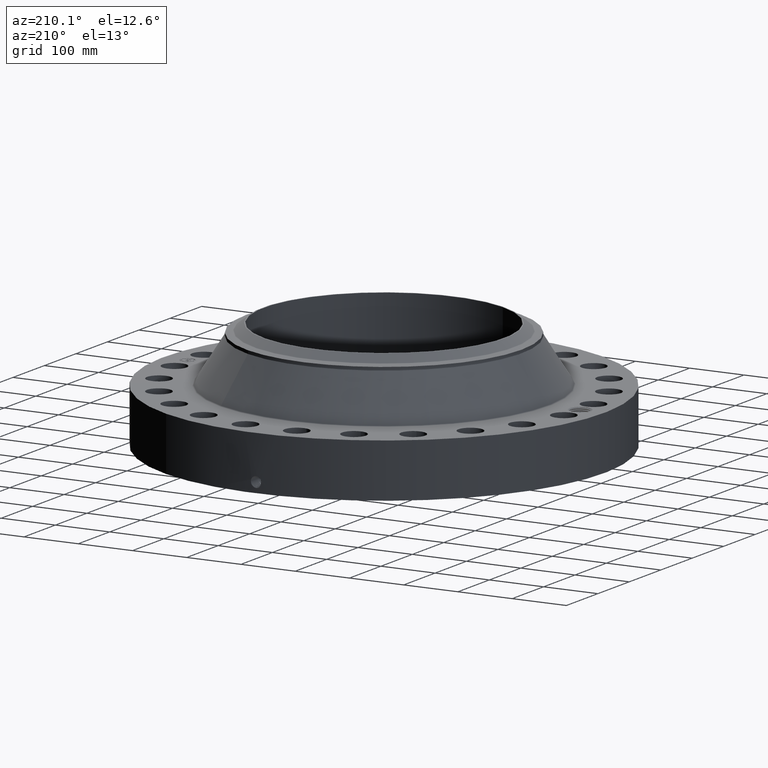
[diagram: clean part render]
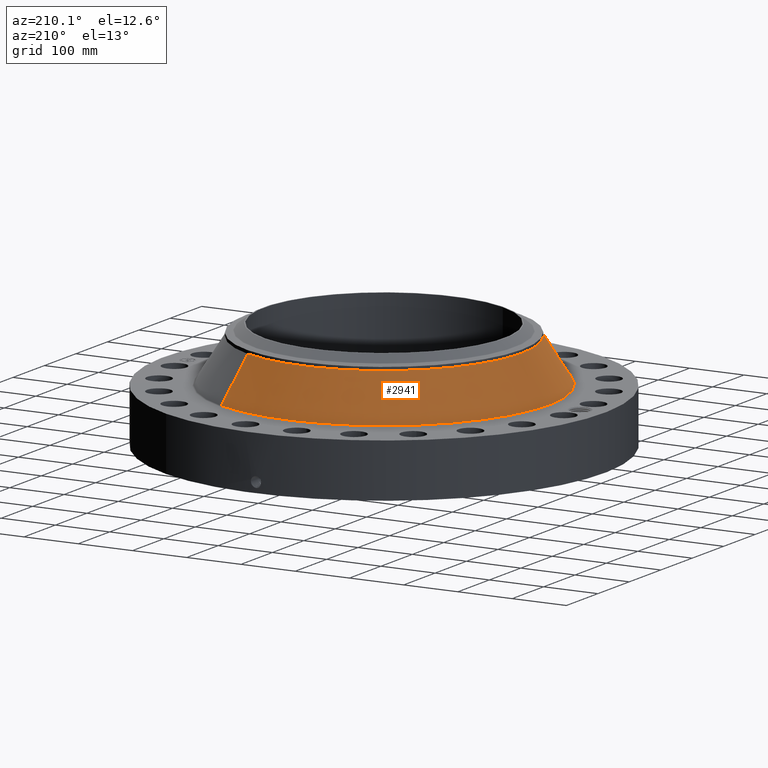
[diagram: same view with one face highlighted and labeled with its STEP entity id]
A machine part, auxiliary view. The second image highlights one B-rep face of the part: STEP entity #2941.
In plain terms, the highlighted conical surface has half-angle 32.361 deg.
Its self-contained STEP definition (entity closure, byte-faithful):
#2195=AXIS2_PLACEMENT_3D('Circle Axis2P3D',#2193,#2194,$) ;
#2914=AXIS2_PLACEMENT_3D('Cone Axis2P3D',#2911,#2912,#2913) ;
#2918=AXIS2_PLACEMENT_3D('Circle Axis2P3D',#2916,#2917,$) ;
#2190=CARTESIAN_POINT('Vertex',(4.79425538606,8.77582561894,7.03123749356)) ;
#2193=CARTESIAN_POINT('Axis2P3D Location',(0.,0.,7.03123749356)) ;
#2197=CARTESIAN_POINT('Vertex',(-4.79425538606,-8.77582561894,7.03123749356)) ;
#2911=CARTESIAN_POINT('Axis2P3D Location',(0.,0.,7.03123749356)) ;
#2916=CARTESIAN_POINT('Axis2P3D Location',(0.,0.,3.93076969427)) ;
#2920=CARTESIAN_POINT('Vertex',(-5.73616387529,-10.4999775435,3.93076969427)) ;
#2922=CARTESIAN_POINT('Vertex',(5.73616387529,10.4999775435,3.93076969427)) ;
#2925=CARTESIAN_POINT('Line Origine',(-5.26520963068,-9.6379015812,5.48100359392)) ;
#2930=CARTESIAN_POINT('Line Origine',(5.26520963068,9.6379015812,5.48100359392)) ;
#2194=DIRECTION('Axis2P3D Direction',(0.,0.,-0.0393700787402)) ;
#2912=DIRECTION('Axis2P3D Direction',(0.,0.,-0.0393700787402)) ;
#2913=DIRECTION('Axis2P3D XDirection',(0.0188750212049,0.0345504945626,0.)) ;
#2917=DIRECTION('Axis2P3D Direction',(0.,0.,-0.0393700787402)) ;
#2926=DIRECTION('Vector Direction',(-0.0101029031905,-0.0184932402439,-0.0332555937011)) ;
#2931=DIRECTION('Vector Direction',(0.0101029031905,0.0184932402439,-0.0332555937011)) ;
#2927=VECTOR('Line Direction',#2926,0.0393700787402) ;
#2932=VECTOR('Line Direction',#2931,0.0393700787402) ;
#2936=ORIENTED_EDGE('',*,*,#2924,.F.) ;
#2937=ORIENTED_EDGE('',*,*,#2929,.T.) ;
#2938=ORIENTED_EDGE('',*,*,#2199,.T.) ;
#2939=ORIENTED_EDGE('',*,*,#2934,.F.) ;
#2941=ADVANCED_FACE('PartBody',(#2940),#2915,.T.) ;
#2196=CIRCLE('generated circle',#2195,10.) ;
#2919=CIRCLE('generated circle',#2918,11.9646606478) ;
#2915=CONICAL_SURFACE('Cone',#2914,10.,0.56480670096) ;
#2199=EDGE_CURVE('',#2198,#2191,#2196,.T.) ;
#2924=EDGE_CURVE('',#2921,#2923,#2919,.T.) ;
#2929=EDGE_CURVE('',#2921,#2198,#2928,.F.) ;
#2934=EDGE_CURVE('',#2923,#2191,#2933,.F.) ;
#2935=EDGE_LOOP('',(#2936,#2937,#2938,#2939)) ;
#2940=FACE_OUTER_BOUND('',#2935,.T.) ;
#2928=LINE('Line',#2925,#2927) ;
#2933=LINE('Line',#2930,#2932) ;
#2191=VERTEX_POINT('',#2190) ;
#2198=VERTEX_POINT('',#2197) ;
#2921=VERTEX_POINT('',#2920) ;
#2923=VERTEX_POINT('',#2922) ;